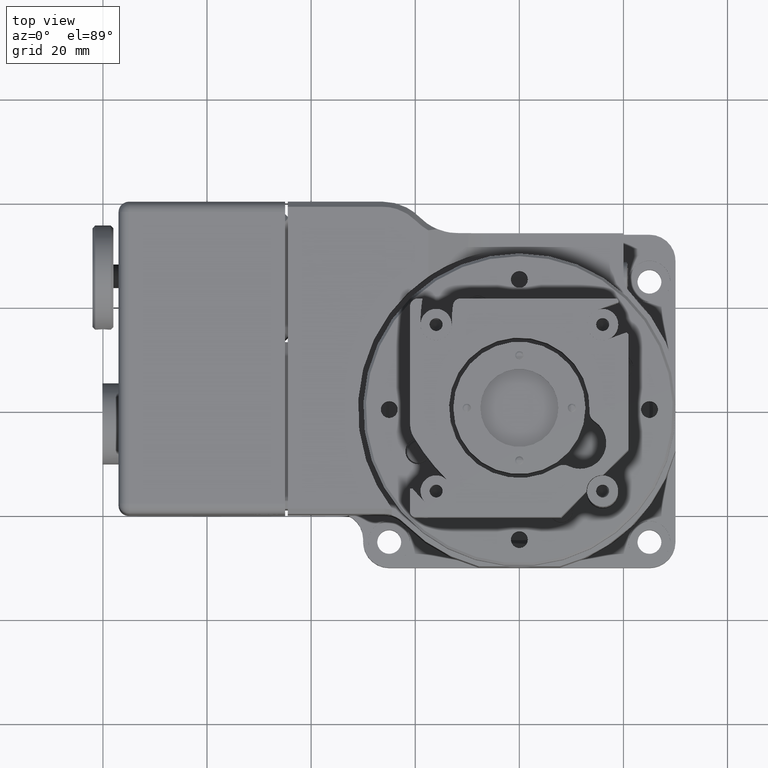
[diagram: clean part render]
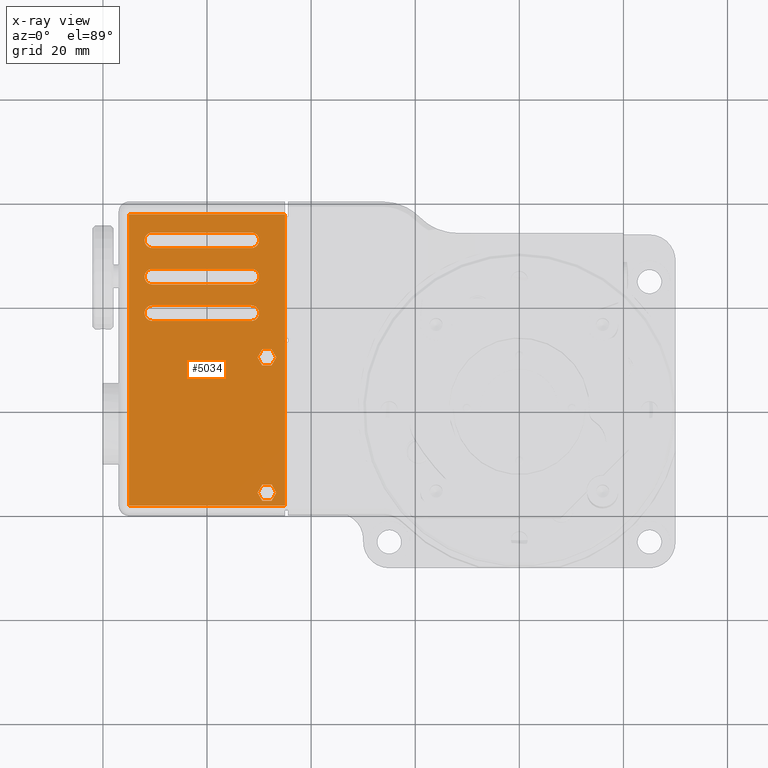
[diagram: x-ray — body ghosted, one internal face saturated and labeled with its STEP entity id]
A machine part, top view, then the same camera in x-ray: the body is ghosted and one INTERNAL B-rep face — a face not visible from any outside direction — is saturated and labeled: STEP entity #5034.
In plain terms, the highlighted planar face has unit normal (-0, 0, 1).
Its self-contained STEP definition (entity closure, byte-faithful):
#184 = CARTESIAN_POINT ( 'NONE',  ( -1.874216814281736365, 0.3523622047244094335, 0.05118110236220535514 ) ) ;
#361 = EDGE_LOOP ( 'NONE', ( #7567, #32311, #22167, #67363 ) ) ;
#484 = CARTESIAN_POINT ( 'NONE',  ( -2.276902887139110376, 0.6889763779527560139, 0.05118110236220545922 ) ) ;
#849 = B_SPLINE_CURVE_WITH_KNOTS ( 'NONE', 3,
 ( #8955, #20896, #53901, #42678 ),
 .UNSPECIFIED., .F., .F.,
 ( 4, 4 ),
 ( 0.000000000000000000, 1.000000000000000000 ),
 .UNSPECIFIED. ) ;
#865 = CARTESIAN_POINT ( 'NONE',  ( -1.975987936328125416, 0.7182092404562008259, 0.05118110236220548004 ) ) ;
#987 = CARTESIAN_POINT ( 'NONE',  ( -2.834642803146336654, 1.291395839605961049, 0.05118110236220527187 ) ) ;
#1157 = EDGE_CURVE ( 'NONE', #5007, #47717, #19038, .T. ) ;
#1255 = EDGE_CURVE ( 'NONE', #58284, #51264, #849, .T. ) ;
#1347 = CARTESIAN_POINT ( 'NONE',  ( -2.790962381973849826, 1.356769282136048638, 0.05118110236220527187 ) ) ;
#1535 = CARTESIAN_POINT ( 'NONE',  ( -2.783429243541466036, 1.082677165354331006, 0.05118110236220531351 ) ) ;
#1963 = EDGE_CURVE ( 'NONE', #54314, #27808, #61242, .T. ) ;
#2179 = B_SPLINE_CURVE_WITH_KNOTS ( 'NONE', 3,
 ( #47493, #36958, #19565, #30790 ),
 .UNSPECIFIED., .F., .F.,
 ( 4, 4 ),
 ( 0.000000000000000000, 1.000000000000000000 ),
 .UNSPECIFIED. ) ;
#2523 = CARTESIAN_POINT ( 'NONE',  ( -2.559055118110236560, -0.7086614173228347191, 0.05118110236220572290 ) ) ;
#2578 = VERTEX_POINT ( 'NONE', #184 ) ;
#3003 = CARTESIAN_POINT ( 'NONE',  ( -2.027559055118110187, 1.082677165354330784, 0.05118110236220519554 ) ) ;
#3082 = CARTESIAN_POINT ( 'NONE',  ( -2.775590551181102317, 0.8070866141732283561, 0.05118110236220519554 ) ) ;
#3169 = ORIENTED_EDGE ( 'NONE', *, *, #55411, .T. ) ;
#3476 = VERTEX_POINT ( 'NONE', #45256 ) ;
#3525 = CARTESIAN_POINT ( 'NONE',  ( -1.921192820436275595, 0.3523622047244108768, 0.05118110236220557718 ) ) ;
#4041 = B_SPLINE_CURVE_WITH_KNOTS ( 'NONE', 3,
 ( #11910, #55771, #61916, #12268 ),
 .UNSPECIFIED., .F., .F.,
 ( 4, 4 ),
 ( 0.000000000000000000, 1.000000000000000000 ),
 .UNSPECIFIED. ) ;
#4099 = CARTESIAN_POINT ( 'NONE',  ( -2.775590551181102317, 0.6889763779527560139, 0.05118110236220519554 ) ) ;
#4647 = EDGE_CURVE ( 'NONE', #52477, #9265, #63409, .T. ) ;
#5007 = VERTEX_POINT ( 'NONE', #45086 ) ;
#5034 = ADVANCED_FACE ( 'NONE', ( #5939, #32757, #16440, #66758, #71136, #54493 ), #66402, .T. ) ;
#5233 = CARTESIAN_POINT ( 'NONE',  ( -2.027559055118110187, 1.358267716535433323, 0.05118110236220519554 ) ) ;
#5559 = CARTESIAN_POINT ( 'NONE',  ( -1.970010544083935944, 0.7326549210754869090, 0.05118110236220549392 ) ) ;
#5738 = CARTESIAN_POINT ( 'NONE',  ( -2.027559055118110187, 0.8070866141732283561, 0.05118110236220527881 ) ) ;
#5939 = FACE_BOUND ( 'NONE', #361, .T. ) ;
#6009 = EDGE_LOOP ( 'NONE', ( #34565, #29058, #15654, #21046 ) ) ;
#6041 = CARTESIAN_POINT ( 'NONE',  ( -2.775590551181102317, 0.8070866141732283561, 0.05118110236220519554 ) ) ;
#6071 = CARTESIAN_POINT ( 'NONE',  ( -2.027559055118110187, 1.240157480314960647, 0.05118110236220519554 ) ) ;
#6239 = CARTESIAN_POINT ( 'NONE',  ( -2.526246719160106124, 0.6889763779527560139, 0.05118110236220543841 ) ) ;
#6269 = CARTESIAN_POINT ( 'NONE',  ( -1.968501070862828106, 0.7402147372439948914, 0.05118110236220548004 ) ) ;
#6387 = B_SPLINE_CURVE_WITH_KNOTS ( 'NONE', 3,
 ( #61940, #38769, #22445, #39116, #44595, #66618, #46388, #51442, #30044, #58312, #52153, #7586, #57595, #29679, #68049, #52869, #8638, #40925 ),
 .UNSPECIFIED., .F., .F.,
 ( 4, 2, 2, 2, 2, 2, 2, 2, 4 ),
 ( 0.000000000000000000, 0.1250000000000000000, 0.2500000000000000000, 0.3750000000000000000, 0.5000000000000000000, 0.6250000000000000000, 0.7500000000000000000, 0.8750000000000000000, 1.000000000000000000 ),
 .UNSPECIFIED. ) ;
#6388 = CARTESIAN_POINT ( 'NONE',  ( -2.833144358160782694, 1.283833829785347103, 0.05118110236220527187 ) ) ;
#6577 = CARTESIAN_POINT ( 'NONE',  ( -2.790962381973849826, 1.081178730954946321, 0.05118110236220532044 ) ) ;
#6626 = CARTESIAN_POINT ( 'NONE',  ( -1.980271470800203160, 0.7842645140453091690, 0.05118110236220547310 ) ) ;
#6637 = CARTESIAN_POINT ( 'NONE',  ( -1.862472812743103834, -0.5695538057742781657, 0.05118110236220578535 ) ) ;
#6754 = CARTESIAN_POINT ( 'NONE',  ( -2.833139062215403126, 1.314589173412535450, 0.05118110236220527187 ) ) ;
#6792 = CARTESIAN_POINT ( 'NONE',  ( -1.874216814281732590, -0.6712598425196850682, 0.05118110236220575066 ) ) ;
#6996 = EDGE_CURVE ( 'NONE', #50062, #5007, #6387, .T. ) ;
#7355 = CARTESIAN_POINT ( 'NONE',  ( -2.276902887139111709, 1.082677165354330784, 0.05118110236220536902 ) ) ;
#7567 = ORIENTED_EDGE ( 'NONE', *, *, #6996, .T. ) ;
#7586 = CARTESIAN_POINT ( 'NONE',  ( -1.975987936328125416, 0.9937997916373035867, 0.05118110236220543841 ) ) ;
#7637 = CARTESIAN_POINT ( 'NONE',  ( -2.827156374025597607, 0.9938019852896410322, 0.05118110236220534126 ) ) ;
#8164 = CARTESIAN_POINT ( 'NONE',  ( -1.838984809665830999, -0.6102362204724409711, 0.05118110236220590331 ) ) ;
#8608 = VERTEX_POINT ( 'NONE', #63247 ) ;
#8638 = CARTESIAN_POINT ( 'NONE',  ( -2.019720362757804644, 0.9645669291338585527, 0.05118110236220543841 ) ) ;
#8824 = CARTESIAN_POINT ( 'NONE',  ( -1.968168826590812825, 0.4337270341207382640, 0.05118110236220556331 ) ) ;
#8912 = CARTESIAN_POINT ( 'NONE',  ( -1.874216814281736365, 0.3523622047244094335, 0.05118110236220535514 ) ) ;
#8955 = CARTESIAN_POINT ( 'NONE',  ( -1.944680823513539547, 0.3523622047244094335, 0.05118110236220472370 ) ) ;
#9040 = VERTEX_POINT ( 'NONE', #25460 ) ;
#9265 = VERTEX_POINT ( 'NONE', #47897 ) ;
#9745 = EDGE_CURVE ( 'NONE', #51264, #36087, #24975, .T. ) ;
#9918 = B_SPLINE_CURVE_WITH_KNOTS ( 'NONE', 3,
 ( #51355, #50987, #29228, #45222, #61136, #66894, #61490, #11490, #16930, #11845, #33603, #27784, #56798, #39033, #33967, #61853, #23424, #6071 ),
 .UNSPECIFIED., .F., .F.,
 ( 4, 2, 2, 2, 2, 2, 2, 2, 4 ),
 ( 0.000000000000000000, 0.1250000000000000000, 0.2500000000000000000, 0.3750000000000000000, 0.5000000000000000000, 0.6250000000000000000, 0.7500000000000000000, 0.8750000000000000000, 1.000000000000000000 ),
 .UNSPECIFIED. ) ;
#9931 = VERTEX_POINT ( 'NONE', #63098 ) ;
#10966 = CARTESIAN_POINT ( 'NONE',  ( -1.997736799511320438, 0.7996026148530076538, 0.05118110236220546616 ) ) ;
#11075 = CARTESIAN_POINT ( 'NONE',  ( -1.874216814281736365, 0.4744094488188976277, 0.05118110236220550779 ) ) ;
#11080 = CARTESIAN_POINT ( 'NONE',  ( -2.811819515822184368, 1.251929067448343202, 0.05118110236220527881 ) ) ;
#11320 = CARTESIAN_POINT ( 'NONE',  ( -1.980275524141429599, 0.7118025314218476840, 0.05118110236220549392 ) ) ;
#11490 = CARTESIAN_POINT ( 'NONE',  ( -1.970005248138487985, 1.314591367065168104, 0.05118110236220536902 ) ) ;
#11625 = CARTESIAN_POINT ( 'NONE',  ( -2.833144358160782694, 1.008243278604244786, 0.05118110236220531351 ) ) ;
#11845 = CARTESIAN_POINT ( 'NONE',  ( -1.968501070862828106, 1.291395839606199747, 0.05118110236220538289 ) ) ;
#11910 = CARTESIAN_POINT ( 'NONE',  ( -1.874216814281732590, -0.6712598425196850682, 0.05118110236220575066 ) ) ;
#12184 = EDGE_CURVE ( 'NONE', #67544, #16506, #57563, .T. ) ;
#12268 = CARTESIAN_POINT ( 'NONE',  ( -1.944680823513539547, -0.6712598425196850682, 0.05118110236220590331 ) ) ;
#13056 = CARTESIAN_POINT ( 'NONE',  ( -2.834648535436341543, 1.031438806063331048, 0.05118110236220532738 ) ) ;
#13717 = CARTESIAN_POINT ( 'NONE',  ( -2.165354330708661124, -0.7086614173228347191, 0.05118110236220576453 ) ) ;
#13976 = CARTESIAN_POINT ( 'NONE',  ( -2.276902887139111709, 1.240157480314960647, 0.05118110236220534126 ) ) ;
#14164 = EDGE_CURVE ( 'NONE', #34531, #15194, #51297, .T. ) ;
#14630 = CARTESIAN_POINT ( 'NONE',  ( -1.956424825052178740, 0.4540682414698195557, 0.05118110236220554943 ) ) ;
#14805 = CARTESIAN_POINT ( 'NONE',  ( -2.952755905511811108, 0.02624671916010483039, 0.05118110236220551473 ) ) ;
#14951 = CARTESIAN_POINT ( 'NONE',  ( -2.833144358160782694, 0.7326527274231420250, 0.05118110236220538983 ) ) ;
#14965 = CARTESIAN_POINT ( 'NONE',  ( -2.952755905511811108, 1.496062992125984259, 0.05118110236220472370 ) ) ;
#15124 = EDGE_CURVE ( 'NONE', #21518, #9040, #49442, .T. ) ;
#15194 = VERTEX_POINT ( 'NONE', #6792 ) ;
#15299 = CARTESIAN_POINT ( 'NONE',  ( -2.783429243541466036, 0.8070866141732283561, 0.05118110236220538289 ) ) ;
#15436 = AXIS2_PLACEMENT_3D ( 'NONE', #38549, #54870, #17522 ) ;
#15491 = CARTESIAN_POINT ( 'NONE',  ( -2.526246719160108789, 0.8070866141732283561, 0.05118110236220541759 ) ) ;
#15654 = ORIENTED_EDGE ( 'NONE', *, *, #43971, .T. ) ;
#15810 = EDGE_LOOP ( 'NONE', ( #16647, #64815, #40406, #53003 ) ) ;
#15848 = EDGE_CURVE ( 'NONE', #44402, #3476, #70942, .T. ) ;
#15872 = CARTESIAN_POINT ( 'NONE',  ( -2.952755905511811108, 0.7611548556430446366, 0.05118110236220536208 ) ) ;
#16219 = CARTESIAN_POINT ( 'NONE',  ( -1.874216814281736365, -0.5492125984251968740, 0.05118110236220550779 ) ) ;
#16440 = FACE_BOUND ( 'NONE', #31687, .T. ) ;
#16506 = VERTEX_POINT ( 'NONE', #49829 ) ;
#16647 = ORIENTED_EDGE ( 'NONE', *, *, #50435, .T. ) ;
#16779 = CARTESIAN_POINT ( 'NONE',  ( -1.997732055316506106, 0.6964685499496803267, 0.05118110236220550086 ) ) ;
#16930 = CARTESIAN_POINT ( 'NONE',  ( -1.968506803152920481, 1.307029357244194445, 0.05118110236220536902 ) ) ;
#17136 = CARTESIAN_POINT ( 'NONE',  ( -1.991330090476984171, 0.7953150270397224553, 0.05118110236220548004 ) ) ;
#17255 = CARTESIAN_POINT ( 'NONE',  ( -2.775590551181102317, 1.240157480314960647, 0.05118110236220519554 ) ) ;
#17522 = DIRECTION ( 'NONE',  ( 0.000000000000000000, -1.000000000000000000, 2.081668171172169499E-16 ) ) ;
#17612 = CARTESIAN_POINT ( 'NONE',  ( -2.811823569163413250, 1.346500182743088692, 0.05118110236220525799 ) ) ;
#17860 = B_SPLINE_CURVE_WITH_KNOTS ( 'NONE', 3,
 ( #52148, #2523, #13717, #62992 ),
 .UNSPECIFIED., .F., .F.,
 ( 4, 4 ),
 ( 0.000000000000000000, 1.000000000000000000 ),
 .UNSPECIFIED. ) ;
#18167 = CARTESIAN_POINT ( 'NONE',  ( -2.027559055118110187, 0.6889763779527560139, 0.05118110236220543147 ) ) ;
#18233 = CARTESIAN_POINT ( 'NONE',  ( -2.952755905511811108, -0.7086614173228346081, 0.05118110236220558412 ) ) ;
#18295 = B_SPLINE_CURVE_WITH_KNOTS ( 'NONE', 3,
 ( #71214, #66118, #61434, #11075 ),
 .UNSPECIFIED., .F., .F.,
 ( 4, 4 ),
 ( 0.000000000000000000, 1.000000000000000000 ),
 .UNSPECIFIED. ) ;
#18430 = B_SPLINE_CURVE_WITH_KNOTS ( 'NONE', 3,
 ( #38558, #26941, #71500, #5233 ),
 .UNSPECIFIED., .F., .F.,
 ( 4, 4 ),
 ( 0.000000000000000000, 1.000000000000000000 ),
 .UNSPECIFIED. ) ;
#18513 = CARTESIAN_POINT ( 'NONE',  ( -2.811819515822202131, 0.9763385162672821860, 0.05118110236220534126 ) ) ;
#18574 = CARTESIAN_POINT ( 'NONE',  ( -1.850728811204469304, -0.5898950131233594574, 0.05118110236220577147 ) ) ;
#19038 = B_SPLINE_CURVE_WITH_KNOTS ( 'NONE', 3,
 ( #59689, #31425, #69806, #69445 ),
 .UNSPECIFIED., .F., .F.,
 ( 4, 4 ),
 ( 0.000000000000000000, 1.000000000000000000 ),
 .UNSPECIFIED. ) ;
#19491 = ORIENTED_EDGE ( 'NONE', *, *, #54040, .T. ) ;
#19565 = CARTESIAN_POINT ( 'NONE',  ( -1.862472812743104500, 0.3727034120734911138, 0.05118110236220558412 ) ) ;
#19660 = CARTESIAN_POINT ( 'NONE',  ( -2.811823569163413250, 0.7953190803808842801, 0.05118110236220538289 ) ) ;
#19782 = CARTESIAN_POINT ( 'NONE',  ( -1.944680823513539547, -0.5492125984251968740, 0.05118110236220535514 ) ) ;
#19906 = ORIENTED_EDGE ( 'NONE', *, *, #12184, .T. ) ;
#20195 = CARTESIAN_POINT ( 'NONE',  ( -1.956424825052177185, -0.6509186351706036655, 0.05118110236220578535 ) ) ;
#20225 = CARTESIAN_POINT ( 'NONE',  ( -1.944680823513539547, 0.3523622047244094335, 0.05118110236220472370 ) ) ;
#20598 = EDGE_CURVE ( 'NONE', #3476, #2578, #2179, .T. ) ;
#20685 = CARTESIAN_POINT ( 'NONE',  ( -1.771653543307086576, 1.496062992125984259, 0.05118110236220519554 ) ) ;
#20896 = CARTESIAN_POINT ( 'NONE',  ( -1.956424825052178962, 0.3727034120734911693, 0.05118110236220557024 ) ) ;
#21046 = ORIENTED_EDGE ( 'NONE', *, *, #15124, .F. ) ;
#21077 = CARTESIAN_POINT ( 'NONE',  ( -2.027559055118110187, 1.082677165354330784, 0.05118110236220519554 ) ) ;
#21281 = EDGE_CURVE ( 'NONE', #9265, #22499, #18430, .T. ) ;
#21518 = VERTEX_POINT ( 'NONE', #63132 ) ;
#21570 = ORIENTED_EDGE ( 'NONE', *, *, #1963, .T. ) ;
#21653 = EDGE_CURVE ( 'NONE', #47717, #8608, #26084, .T. ) ;
#22167 = ORIENTED_EDGE ( 'NONE', *, *, #21653, .T. ) ;
#22200 = CARTESIAN_POINT ( 'NONE',  ( -1.970005248138487985, 0.7634102647029632482, 0.05118110236220548004 ) ) ;
#22388 = VERTEX_POINT ( 'NONE', #43228 ) ;
#22445 = CARTESIAN_POINT ( 'NONE',  ( -2.012182480130606965, 1.081170558278252258, 0.05118110236220541759 ) ) ;
#22499 = VERTEX_POINT ( 'NONE', #45371 ) ;
#22919 = CARTESIAN_POINT ( 'NONE',  ( -2.019720362757804644, 0.6889763779527560139, 0.05118110236220549392 ) ) ;
#23033 = CARTESIAN_POINT ( 'NONE',  ( -2.834648535436341543, 1.307029357244433143, 0.05118110236220527187 ) ) ;
#23261 = CARTESIAN_POINT ( 'NONE',  ( -2.012182480130606965, 0.8055800070971498306, 0.05118110236220547310 ) ) ;
#23424 = CARTESIAN_POINT ( 'NONE',  ( -2.019720362757804644, 1.240157480314960869, 0.05118110236220536902 ) ) ;
#23904 = CARTESIAN_POINT ( 'NONE',  ( -1.968168826590811049, -0.6305774278215222628, 0.05118110236220577147 ) ) ;
#23918 = CARTESIAN_POINT ( 'NONE',  ( -2.805412806787949798, 0.9720509284540792549, 0.05118110236220532738 ) ) ;
#24975 = B_SPLINE_CURVE_WITH_KNOTS ( 'NONE', 3,
 ( #58498, #8824, #14630, #36738 ),
 .UNSPECIFIED., .F., .F.,
 ( 4, 4 ),
 ( 0.000000000000000000, 1.000000000000000000 ),
 .UNSPECIFIED. ) ;
#25460 = CARTESIAN_POINT ( 'NONE',  ( -1.771653543307086576, -0.7086614173228346081, 0.05118110236220558412 ) ) ;
#25986 = CARTESIAN_POINT ( 'NONE',  ( -1.897704817359007867, -0.5492125984251968740, 0.05118110236220577147 ) ) ;
#26084 = B_SPLINE_CURVE_WITH_KNOTS ( 'NONE', 3,
 ( #45720, #45366, #56219, #23918, #18513, #46083, #7637, #11625, #68099, #13056, #50433, #39532, #39906, #66678, #44653, #6577, #1535, #33741 ),
 .UNSPECIFIED., .F., .F.,
 ( 4, 2, 2, 2, 2, 2, 2, 2, 4 ),
 ( 0.000000000000000000, 0.1250000000000000000, 0.2500000000000000000, 0.3750000000000000000, 0.5000000000000000000, 0.6250000000000000000, 0.7500000000000000000, 0.8750000000000000000, 1.000000000000000000 ),
 .UNSPECIFIED. ) ;
#26133 = CARTESIAN_POINT ( 'NONE',  ( -2.833139062215403126, 0.7634080710503302614, 0.05118110236220538289 ) ) ;
#26687 = CARTESIAN_POINT ( 'NONE',  ( -1.771653543307086576, 1.496062992125984259, 0.05118110236220519554 ) ) ;
#26941 = CARTESIAN_POINT ( 'NONE',  ( -2.526246719160108789, 1.358267716535433323, 0.05118110236220529269 ) ) ;
#27375 = CARTESIAN_POINT ( 'NONE',  ( -2.822878135499069074, 1.262979580443007066, 0.05118110236220528575 ) ) ;
#27661 = B_SPLINE_CURVE_WITH_KNOTS ( 'NONE', 3,
 ( #8912, #31028, #3525, #48084 ),
 .UNSPECIFIED., .F., .F.,
 ( 4, 4 ),
 ( 0.000000000000000000, 1.000000000000000000 ),
 .UNSPECIFIED. ) ;
#27733 = ORIENTED_EDGE ( 'NONE', *, *, #36085, .T. ) ;
#27784 = CARTESIAN_POINT ( 'NONE',  ( -1.975987936328125416, 1.269390342818406126, 0.05118110236220538289 ) ) ;
#27808 = VERTEX_POINT ( 'NONE', #3082 ) ;
#28117 = CARTESIAN_POINT ( 'NONE',  ( -2.276902887139111709, 0.8070866141732283561, 0.05118110236220543147 ) ) ;
#28342 = CARTESIAN_POINT ( 'NONE',  ( -1.991326037135758842, 0.7007439117451003119, 0.05118110236220548004 ) ) ;
#28444 = CARTESIAN_POINT ( 'NONE',  ( -2.775590551181102317, 1.240157480314960647, 0.05118110236220519554 ) ) ;
#28810 = EDGE_CURVE ( 'NONE', #27808, #51283, #60690, .T. ) ;
#28829 = CARTESIAN_POINT ( 'NONE',  ( -2.805417550982665986, 1.350775544538510342, 0.05118110236220525799 ) ) ;
#28979 = ORIENTED_EDGE ( 'NONE', *, *, #15848, .T. ) ;
#29058 = ORIENTED_EDGE ( 'NONE', *, *, #65694, .T. ) ;
#29228 = CARTESIAN_POINT ( 'NONE',  ( -2.012182480130691342, 1.356761109459413417, 0.05118110236220536208 ) ) ;
#29552 = CARTESIAN_POINT ( 'NONE',  ( -2.775590551181102317, 1.358267716535433323, 0.05118110236220519554 ) ) ;
#29621 = VERTEX_POINT ( 'NONE', #14965 ) ;
#29679 = CARTESIAN_POINT ( 'NONE',  ( -1.991326037135758842, 0.9763344629262031837, 0.05118110236220543841 ) ) ;
#30044 = CARTESIAN_POINT ( 'NONE',  ( -1.968506803152920481, 1.031438806063092128, 0.05118110236220543147 ) ) ;
#30790 = CARTESIAN_POINT ( 'NONE',  ( -1.874216814281736365, 0.3523622047244094335, 0.05118110236220535514 ) ) ;
#31028 = CARTESIAN_POINT ( 'NONE',  ( -1.897704817359007867, 0.3523622047244108768, 0.05118110236220558412 ) ) ;
#31252 = CARTESIAN_POINT ( 'NONE',  ( -2.783414236668733999, 0.6889763779527561249, 0.05118110236220539677 ) ) ;
#31392 = VERTEX_POINT ( 'NONE', #57427 ) ;
#31425 = CARTESIAN_POINT ( 'NONE',  ( -2.276902887139111709, 0.9645669291338583307, 0.05118110236220539677 ) ) ;
#31687 = EDGE_LOOP ( 'NONE', ( #43922, #33542, #21570, #33172 ) ) ;
#31792 = B_SPLINE_CURVE_WITH_KNOTS ( 'NONE', 3,
 ( #39598, #6637, #18574, #45779 ),
 .UNSPECIFIED., .F., .F.,
 ( 4, 4 ),
 ( 0.000000000000000000, 1.000000000000000000 ),
 .UNSPECIFIED. ) ;
#31961 = CARTESIAN_POINT ( 'NONE',  ( -2.805412806787949798, 0.6964603772729777154, 0.05118110236220539677 ) ) ;
#32311 = ORIENTED_EDGE ( 'NONE', *, *, #1157, .T. ) ;
#32646 = CARTESIAN_POINT ( 'NONE',  ( -1.944680823513539547, -0.6712598425196850682, 0.05118110236220590331 ) ) ;
#32757 = FACE_BOUND ( 'NONE', #15810, .T. ) ;
#32923 = ORIENTED_EDGE ( 'NONE', *, *, #9745, .T. ) ;
#33008 = EDGE_CURVE ( 'NONE', #36087, #44402, #18295, .T. ) ;
#33080 = VERTEX_POINT ( 'NONE', #37923 ) ;
#33082 = CARTESIAN_POINT ( 'NONE',  ( -1.975993232273573597, 0.7778515580173274158, 0.05118110236220548004 ) ) ;
#33172 = ORIENTED_EDGE ( 'NONE', *, *, #28810, .T. ) ;
#33542 = ORIENTED_EDGE ( 'NONE', *, *, #43578, .T. ) ;
#33603 = CARTESIAN_POINT ( 'NONE',  ( -1.970010544083935944, 1.283836023437692209, 0.05118110236220536902 ) ) ;
#33741 = CARTESIAN_POINT ( 'NONE',  ( -2.775590551181102317, 1.082677165354330784, 0.05118110236220519554 ) ) ;
#33786 = ORIENTED_EDGE ( 'NONE', *, *, #20598, .T. ) ;
#33967 = CARTESIAN_POINT ( 'NONE',  ( -1.997732055316506106, 1.247649652311886515, 0.05118110236220538289 ) ) ;
#34531 = VERTEX_POINT ( 'NONE', #8164 ) ;
#34565 = ORIENTED_EDGE ( 'NONE', *, *, #46196, .T. ) ;
#34725 = VERTEX_POINT ( 'NONE', #18233 ) ;
#34893 = CARTESIAN_POINT ( 'NONE',  ( -2.526246719160108789, 1.082677165354330784, 0.05118110236220535514 ) ) ;
#35159 = ORIENTED_EDGE ( 'NONE', *, *, #63042, .T. ) ;
#35981 = CARTESIAN_POINT ( 'NONE',  ( -2.827156374025597607, 0.7182114341085376052, 0.05118110236220539677 ) ) ;
#36085 = EDGE_CURVE ( 'NONE', #15194, #67544, #4041, .T. ) ;
#36087 = VERTEX_POINT ( 'NONE', #55416 ) ;
#36149 = ORIENTED_EDGE ( 'NONE', *, *, #33008, .T. ) ;
#36738 = CARTESIAN_POINT ( 'NONE',  ( -1.944680823513539547, 0.4744094488188976277, 0.05118110236220527881 ) ) ;
#36958 = CARTESIAN_POINT ( 'NONE',  ( -1.850728811204470192, 0.3930446194225727941, 0.05118110236220557718 ) ) ;
#37049 = CARTESIAN_POINT ( 'NONE',  ( -2.834648535436341543, 0.7558482548822278435, 0.05118110236220538289 ) ) ;
#37923 = CARTESIAN_POINT ( 'NONE',  ( -2.027559055118110187, 0.6889763779527560139, 0.05118110236220543147 ) ) ;
#38549 = CARTESIAN_POINT ( 'NONE',  ( -2.401574803149606474, 0.3937007874015748254, 0.05118110236220550779 ) ) ;
#38558 = CARTESIAN_POINT ( 'NONE',  ( -2.775590551181102317, 1.358267716535433323, 0.05118110236220519554 ) ) ;
#38769 = CARTESIAN_POINT ( 'NONE',  ( -2.019735369630437649, 1.082677165354330784, 0.05118110236220539677 ) ) ;
#38877 = CARTESIAN_POINT ( 'NONE',  ( -2.012187224325420409, 0.6904748123521410319, 0.05118110236220550779 ) ) ;
#39033 = CARTESIAN_POINT ( 'NONE',  ( -1.991326037135758842, 1.251925014107304612, 0.05118110236220538289 ) ) ;
#39116 = CARTESIAN_POINT ( 'NONE',  ( -1.997736799511320438, 1.075193166034110082, 0.05118110236220541759 ) ) ;
#39232 = CARTESIAN_POINT ( 'NONE',  ( -1.968506803152920481, 0.7558482548819891456, 0.05118110236220548004 ) ) ;
#39346 = CARTESIAN_POINT ( 'NONE',  ( -2.790967126168481638, 1.241664087390982329, 0.05118110236220528575 ) ) ;
#39532 = CARTESIAN_POINT ( 'NONE',  ( -2.827161669970975399, 1.053444302851054948, 0.05118110236220531351 ) ) ;
#39598 = CARTESIAN_POINT ( 'NONE',  ( -1.874216814281736365, -0.5492125984251968740, 0.05118110236220550779 ) ) ;
#39712 = CARTESIAN_POINT ( 'NONE',  ( -2.827161669970975399, 1.329034854032157265, 0.05118110236220525799 ) ) ;
#39906 = CARTESIAN_POINT ( 'NONE',  ( -2.822874082157840636, 1.059851011885241556, 0.05118110236220532738 ) ) ;
#40406 = ORIENTED_EDGE ( 'NONE', *, *, #4647, .T. ) ;
#40925 = CARTESIAN_POINT ( 'NONE',  ( -2.027559055118110187, 0.9645669291338583307, 0.05118110236220519554 ) ) ;
#41283 = EDGE_CURVE ( 'NONE', #51283, #33080, #51826, .T. ) ;
#41370 = CARTESIAN_POINT ( 'NONE',  ( -2.559055118110236560, 1.496062992125984259, 0.05118110236220525799 ) ) ;
#41778 = CARTESIAN_POINT ( 'NONE',  ( -2.775590551181102317, 0.8070866141732283561, 0.05118110236220519554 ) ) ;
#42146 = CARTESIAN_POINT ( 'NONE',  ( -2.790962381973849826, 0.8055881797738440042, 0.05118110236220536902 ) ) ;
#42346 = CARTESIAN_POINT ( 'NONE',  ( -1.921192820436275595, -0.5492125984251968740, 0.05118110236220576453 ) ) ;
#42499 = CARTESIAN_POINT ( 'NONE',  ( -2.790967126168565127, 0.6904829850288362048, 0.05118110236220540371 ) ) ;
#42548 = CARTESIAN_POINT ( 'NONE',  ( -2.775590551181102317, 0.6889763779527560139, 0.05118110236220519554 ) ) ;
#42678 = CARTESIAN_POINT ( 'NONE',  ( -1.979912828129441138, 0.4133858267716535861, 0.05118110236220472370 ) ) ;
#42768 = CARTESIAN_POINT ( 'NONE',  ( -1.850728811204472413, 0.4337270341207372093, 0.05118110236220557024 ) ) ;
#42860 = CARTESIAN_POINT ( 'NONE',  ( -2.822874082157840636, 0.7842604607041376852, 0.05118110236220536902 ) ) ;
#42980 = CARTESIAN_POINT ( 'NONE',  ( -1.956424825052177185, -0.5695538057742781657, 0.05118110236220576453 ) ) ;
#43066 = CARTESIAN_POINT ( 'NONE',  ( -2.952755905511811108, -0.7086614173228346081, 0.05118110236220558412 ) ) ;
#43228 = CARTESIAN_POINT ( 'NONE',  ( -1.944680823513539547, -0.5492125984251968740, 0.05118110236220535514 ) ) ;
#43396 = ORIENTED_EDGE ( 'NONE', *, *, #14164, .T. ) ;
#43578 = EDGE_CURVE ( 'NONE', #33080, #54314, #52385, .T. ) ;
#43733 = CARTESIAN_POINT ( 'NONE',  ( -2.783429243541466036, 1.358267716535433545, 0.05118110236220525799 ) ) ;
#43748 = CARTESIAN_POINT ( 'NONE',  ( -2.027559055118110187, 0.8070866141732283561, 0.05118110236220527881 ) ) ;
#43795 = CARTESIAN_POINT ( 'NONE',  ( -1.979912828129441138, 0.4133858267716535861, 0.05118110236220472370 ) ) ;
#43922 = ORIENTED_EDGE ( 'NONE', *, *, #41283, .T. ) ;
#43971 = EDGE_CURVE ( 'NONE', #34725, #9040, #17860, .T. ) ;
#44096 = CARTESIAN_POINT ( 'NONE',  ( -2.805412806788033730, 1.247641479635241968, 0.05118110236220527881 ) ) ;
#44402 = VERTEX_POINT ( 'NONE', #63062 ) ;
#44595 = CARTESIAN_POINT ( 'NONE',  ( -1.991330090476966852, 1.070905578220807008, 0.05118110236220542453 ) ) ;
#44653 = CARTESIAN_POINT ( 'NONE',  ( -2.805417550982665986, 1.075184993357408247, 0.05118110236220532044 ) ) ;
#44703 = CARTESIAN_POINT ( 'NONE',  ( -2.027559055118110187, 0.8070866141732283561, 0.05118110236220527881 ) ) ;
#44841 = CARTESIAN_POINT ( 'NONE',  ( -1.838984809665830999, -0.6102362204724409711, 0.05118110236220590331 ) ) ;
#45056 = CARTESIAN_POINT ( 'NONE',  ( -2.027559055118110187, 0.6889763779527560139, 0.05118110236220543147 ) ) ;
#45086 = CARTESIAN_POINT ( 'NONE',  ( -2.027559055118110187, 0.9645669291338583307, 0.05118110236220519554 ) ) ;
#45222 = CARTESIAN_POINT ( 'NONE',  ( -1.997736799511235839, 1.350783717215153779, 0.05118110236220535514 ) ) ;
#45256 = CARTESIAN_POINT ( 'NONE',  ( -1.838984809665834774, 0.4133858267716535861, 0.05118110236220535514 ) ) ;
#45366 = CARTESIAN_POINT ( 'NONE',  ( -2.783414236668733999, 0.9645669291338582196, 0.05118110236220534126 ) ) ;
#45371 = CARTESIAN_POINT ( 'NONE',  ( -2.027559055118110187, 1.358267716535433323, 0.05118110236220519554 ) ) ;
#45720 = CARTESIAN_POINT ( 'NONE',  ( -2.775590551181102317, 0.9645669291338583307, 0.05118110236220519554 ) ) ;
#45779 = CARTESIAN_POINT ( 'NONE',  ( -1.838984809665830999, -0.6102362204724409711, 0.05118110236220590331 ) ) ;
#46083 = CARTESIAN_POINT ( 'NONE',  ( -2.822878135499051755, 0.9873890292618630049, 0.05118110236220534126 ) ) ;
#46196 = EDGE_CURVE ( 'NONE', #21518, #29621, #48671, .T. ) ;
#46388 = CARTESIAN_POINT ( 'NONE',  ( -1.975993232273573597, 1.053442109198405863, 0.05118110236220542453 ) ) ;
#47493 = CARTESIAN_POINT ( 'NONE',  ( -1.838984809665834774, 0.4133858267716535861, 0.05118110236220535514 ) ) ;
#47717 = VERTEX_POINT ( 'NONE', #57461 ) ;
#47772 = B_SPLINE_CURVE_WITH_KNOTS ( 'NONE', 3,
 ( #69030, #58217, #42980, #19782 ),
 .UNSPECIFIED., .F., .F.,
 ( 4, 4 ),
 ( 0.000000000000000000, 1.000000000000000000 ),
 .UNSPECIFIED. ) ;
#47797 = CARTESIAN_POINT ( 'NONE',  ( -1.944680823513539547, -0.5492125984251968740, 0.05118110236220535514 ) ) ;
#47861 = CARTESIAN_POINT ( 'NONE',  ( -1.838984809665834774, 0.4133858267716535861, 0.05118110236220535514 ) ) ;
#47897 = CARTESIAN_POINT ( 'NONE',  ( -2.775590551181102317, 1.358267716535433323, 0.05118110236220519554 ) ) ;
#48084 = CARTESIAN_POINT ( 'NONE',  ( -1.944680823513539547, 0.3523622047244094335, 0.05118110236220472370 ) ) ;
#48511 = CARTESIAN_POINT ( 'NONE',  ( -1.771653543307083245, 0.02624671916010483039, 0.05118110236220520248 ) ) ;
#48671 = B_SPLINE_CURVE_WITH_KNOTS ( 'NONE', 3,
 ( #20685, #59113, #41370, #69947 ),
 .UNSPECIFIED., .F., .F.,
 ( 4, 4 ),
 ( 0.000000000000000000, 1.000000000000000000 ),
 .UNSPECIFIED. ) ;
#48846 = CARTESIAN_POINT ( 'NONE',  ( -1.771653543307086576, -0.7086614173228346081, 0.05118110236220558412 ) ) ;
#49442 = B_SPLINE_CURVE_WITH_KNOTS ( 'NONE', 3,
 ( #26687, #71251, #48511, #48846 ),
 .UNSPECIFIED., .F., .F.,
 ( 4, 4 ),
 ( 0.000000000000000000, 1.000000000000000000 ),
 .UNSPECIFIED. ) ;
#49546 = CARTESIAN_POINT ( 'NONE',  ( -1.862472812743106276, 0.4540682414698183900, 0.05118110236220557024 ) ) ;
#49829 = CARTESIAN_POINT ( 'NONE',  ( -1.979912828129441138, -0.6102362204724409711, 0.05118110236220550779 ) ) ;
#50062 = VERTEX_POINT ( 'NONE', #21077 ) ;
#50433 = CARTESIAN_POINT ( 'NONE',  ( -2.833139062215403126, 1.038998622231432911, 0.05118110236220532738 ) ) ;
#50435 = EDGE_CURVE ( 'NONE', #22499, #9931, #9918, .T. ) ;
#50987 = CARTESIAN_POINT ( 'NONE',  ( -2.019735369630378141, 1.358267716535432879, 0.05118110236220536208 ) ) ;
#51118 = CARTESIAN_POINT ( 'NONE',  ( -1.979912828129441138, -0.6102362204724409711, 0.05118110236220550779 ) ) ;
#51264 = VERTEX_POINT ( 'NONE', #43795 ) ;
#51283 = VERTEX_POINT ( 'NONE', #5738 ) ;
#51297 = B_SPLINE_CURVE_WITH_KNOTS ( 'NONE', 3,
 ( #44841, #60399, #66872, #61466 ),
 .UNSPECIFIED., .F., .F.,
 ( 4, 4 ),
 ( 0.000000000000000000, 1.000000000000000000 ),
 .UNSPECIFIED. ) ;
#51355 = CARTESIAN_POINT ( 'NONE',  ( -2.027559055118110187, 1.358267716535433323, 0.05118110236220519554 ) ) ;
#51442 = CARTESIAN_POINT ( 'NONE',  ( -1.970005248138487985, 1.039000815884090656, 0.05118110236220541759 ) ) ;
#51700 = CARTESIAN_POINT ( 'NONE',  ( -2.027559055118110187, 1.240157480314960647, 0.05118110236220519554 ) ) ;
#51826 = B_SPLINE_CURVE_WITH_KNOTS ( 'NONE', 3,
 ( #44703, #54837, #23261, #10966, #17136, #6626, #33082, #22200, #39232, #6269, #5559, #865, #11320, #28342, #16779, #38877, #22919, #45056 ),
 .UNSPECIFIED., .F., .F.,
 ( 4, 2, 2, 2, 2, 2, 2, 2, 4 ),
 ( 0.000000000000000000, 0.1250000000000000000, 0.2500000000000000000, 0.3750000000000000000, 0.5000000000000000000, 0.6250000000000000000, 0.7500000000000000000, 0.8750000000000000000, 1.000000000000000000 ),
 .UNSPECIFIED. ) ;
#52148 = CARTESIAN_POINT ( 'NONE',  ( -2.952755905511811108, -0.7086614173228346081, 0.05118110236220558412 ) ) ;
#52153 = CARTESIAN_POINT ( 'NONE',  ( -1.970010544083935944, 1.008245472256589892, 0.05118110236220543841 ) ) ;
#52385 = B_SPLINE_CURVE_WITH_KNOTS ( 'NONE', 3,
 ( #18167, #484, #6239, #66345 ),
 .UNSPECIFIED., .F., .F.,
 ( 4, 4 ),
 ( 0.000000000000000000, 1.000000000000000000 ),
 .UNSPECIFIED. ) ;
#52477 = VERTEX_POINT ( 'NONE', #28444 ) ;
#52663 = CARTESIAN_POINT ( 'NONE',  ( -2.811819515822202131, 0.7007479650861797582, 0.05118110236220539677 ) ) ;
#52869 = CARTESIAN_POINT ( 'NONE',  ( -2.012187224325420409, 0.9660653635332431266, 0.05118110236220543841 ) ) ;
#53003 = ORIENTED_EDGE ( 'NONE', *, *, #21281, .T. ) ;
#53901 = CARTESIAN_POINT ( 'NONE',  ( -1.968168826590813048, 0.3930446194225727941, 0.05118110236220557024 ) ) ;
#54040 = EDGE_CURVE ( 'NONE', #2578, #58284, #27661, .T. ) ;
#54314 = VERTEX_POINT ( 'NONE', #42548 ) ;
#54493 = FACE_OUTER_BOUND ( 'NONE', #6009, .T. ) ;
#54837 = CARTESIAN_POINT ( 'NONE',  ( -2.019735369630437649, 0.8070866141732283561, 0.05118110236220547310 ) ) ;
#54870 = DIRECTION ( 'NONE',  ( -1.224646799147350002E-16, 2.081668171172169499E-16, 1.000000000000000000 ) ) ;
#55159 = B_SPLINE_CURVE_WITH_KNOTS ( 'NONE', 3,
 ( #65124, #15872, #14805, #43066 ),
 .UNSPECIFIED., .F., .F.,
 ( 4, 4 ),
 ( 0.000000000000000000, 1.000000000000000000 ),
 .UNSPECIFIED. ) ;
#55411 = EDGE_CURVE ( 'NONE', #31392, #34531, #31792, .T. ) ;
#55416 = CARTESIAN_POINT ( 'NONE',  ( -1.944680823513539547, 0.4744094488188976277, 0.05118110236220527881 ) ) ;
#55771 = CARTESIAN_POINT ( 'NONE',  ( -1.897704817359005203, -0.6712598425196851792, 0.05118110236220579923 ) ) ;
#56219 = CARTESIAN_POINT ( 'NONE',  ( -2.790967126168565127, 0.9660735362099379664, 0.05118110236220534820 ) ) ;
#56788 = CARTESIAN_POINT ( 'NONE',  ( -2.775590551181102317, 1.240157480314960647, 0.05118110236220519554 ) ) ;
#56798 = CARTESIAN_POINT ( 'NONE',  ( -1.980275524141428933, 1.262983633784053206, 0.05118110236220538289 ) ) ;
#57427 = CARTESIAN_POINT ( 'NONE',  ( -1.874216814281736365, -0.5492125984251968740, 0.05118110236220550779 ) ) ;
#57461 = CARTESIAN_POINT ( 'NONE',  ( -2.775590551181102317, 0.9645669291338583307, 0.05118110236220519554 ) ) ;
#57522 = ORIENTED_EDGE ( 'NONE', *, *, #64809, .T. ) ;
#57563 = B_SPLINE_CURVE_WITH_KNOTS ( 'NONE', 3,
 ( #58266, #20195, #23904, #51118 ),
 .UNSPECIFIED., .F., .F.,
 ( 4, 4 ),
 ( 0.000000000000000000, 1.000000000000000000 ),
 .UNSPECIFIED. ) ;
#57595 = CARTESIAN_POINT ( 'NONE',  ( -1.980275524141429599, 0.9873930826029497787, 0.05118110236220543841 ) ) ;
#57862 = CARTESIAN_POINT ( 'NONE',  ( -2.526246719160108789, 1.240157480314960647, 0.05118110236220532044 ) ) ;
#58129 = EDGE_CURVE ( 'NONE', #8608, #50062, #61651, .T. ) ;
#58217 = CARTESIAN_POINT ( 'NONE',  ( -1.968168826590811049, -0.5898950131233594574, 0.05118110236220576453 ) ) ;
#58266 = CARTESIAN_POINT ( 'NONE',  ( -1.944680823513539547, -0.6712598425196850682, 0.05118110236220590331 ) ) ;
#58284 = VERTEX_POINT ( 'NONE', #20225 ) ;
#58312 = CARTESIAN_POINT ( 'NONE',  ( -1.968501070862828106, 1.015805288425097652, 0.05118110236220545228 ) ) ;
#58459 = CARTESIAN_POINT ( 'NONE',  ( -2.827161669970975399, 0.7778537516699534082, 0.05118110236220539677 ) ) ;
#58498 = CARTESIAN_POINT ( 'NONE',  ( -1.979912828129441138, 0.4133858267716535861, 0.05118110236220472370 ) ) ;
#59064 = CARTESIAN_POINT ( 'NONE',  ( -1.874216814281736365, 0.4744094488188976277, 0.05118110236220550779 ) ) ;
#59113 = CARTESIAN_POINT ( 'NONE',  ( -2.165354330708661124, 1.496062992125984259, 0.05118110236220530657 ) ) ;
#59689 = CARTESIAN_POINT ( 'NONE',  ( -2.027559055118110187, 0.9645669291338583307, 0.05118110236220519554 ) ) ;
#60399 = CARTESIAN_POINT ( 'NONE',  ( -1.850728811204470192, -0.6305774278215222628, 0.05118110236220578535 ) ) ;
#60690 = B_SPLINE_CURVE_WITH_KNOTS ( 'NONE', 3,
 ( #6041, #15491, #28117, #43748 ),
 .UNSPECIFIED., .F., .F.,
 ( 4, 4 ),
 ( 0.000000000000000000, 1.000000000000000000 ),
 .UNSPECIFIED. ) ;
#61136 = CARTESIAN_POINT ( 'NONE',  ( -1.991330090477002157, 1.346496129401970165, 0.05118110236220536208 ) ) ;
#61242 = B_SPLINE_CURVE_WITH_KNOTS ( 'NONE', 3,
 ( #4099, #31252, #42499, #31961, #52663, #70348, #35981, #14951, #69262, #37049, #26133, #58459, #42860, #19660, #64913, #42146, #15299, #41778 ),
 .UNSPECIFIED., .F., .F.,
 ( 4, 2, 2, 2, 2, 2, 2, 2, 4 ),
 ( 0.000000000000000000, 0.1250000000000000000, 0.2500000000000000000, 0.3750000000000000000, 0.5000000000000000000, 0.6250000000000000000, 0.7500000000000000000, 0.8750000000000000000, 1.000000000000000000 ),
 .UNSPECIFIED. ) ;
#61434 = CARTESIAN_POINT ( 'NONE',  ( -1.897704817359007867, 0.4744094488189002368, 0.05118110236220556331 ) ) ;
#61442 = CARTESIAN_POINT ( 'NONE',  ( -2.827156374025597607, 1.269392536470743460, 0.05118110236220527187 ) ) ;
#61466 = CARTESIAN_POINT ( 'NONE',  ( -1.874216814281732590, -0.6712598425196850682, 0.05118110236220575066 ) ) ;
#61490 = CARTESIAN_POINT ( 'NONE',  ( -1.975993232273573597, 1.329032660379532826, 0.05118110236220536208 ) ) ;
#61651 = B_SPLINE_CURVE_WITH_KNOTS ( 'NONE', 3,
 ( #62054, #34893, #7355, #3003 ),
 .UNSPECIFIED., .F., .F.,
 ( 4, 4 ),
 ( 0.000000000000000000, 1.000000000000000000 ),
 .UNSPECIFIED. ) ;
#61853 = CARTESIAN_POINT ( 'NONE',  ( -2.012187224325420409, 1.241655914714345998, 0.05118110236220539677 ) ) ;
#61916 = CARTESIAN_POINT ( 'NONE',  ( -1.921192820436274484, -0.6712598425196851792, 0.05118110236220579229 ) ) ;
#61940 = CARTESIAN_POINT ( 'NONE',  ( -2.027559055118110187, 1.082677165354330784, 0.05118110236220519554 ) ) ;
#62054 = CARTESIAN_POINT ( 'NONE',  ( -2.775590551181102317, 1.082677165354330784, 0.05118110236220519554 ) ) ;
#62992 = CARTESIAN_POINT ( 'NONE',  ( -1.771653543307086576, -0.7086614173228346081, 0.05118110236220558412 ) ) ;
#63042 = EDGE_CURVE ( 'NONE', #16506, #22388, #47772, .T. ) ;
#63062 = CARTESIAN_POINT ( 'NONE',  ( -1.874216814281736365, 0.4744094488188976277, 0.05118110236220550779 ) ) ;
#63098 = CARTESIAN_POINT ( 'NONE',  ( -2.027559055118110187, 1.240157480314960647, 0.05118110236220519554 ) ) ;
#63132 = CARTESIAN_POINT ( 'NONE',  ( -1.771653543307086576, 1.496062992125984259, 0.05118110236220519554 ) ) ;
#63247 = CARTESIAN_POINT ( 'NONE',  ( -2.775590551181102317, 1.082677165354330784, 0.05118110236220519554 ) ) ;
#63409 = B_SPLINE_CURVE_WITH_KNOTS ( 'NONE', 3,
 ( #17255, #66127, #39346, #44096, #11080, #27375, #61442, #6388, #987, #23033, #6754, #39712, #67207, #17612, #28829, #1347, #43733, #29552 ),
 .UNSPECIFIED., .F., .F.,
 ( 4, 2, 2, 2, 2, 2, 2, 2, 4 ),
 ( 0.000000000000000000, 0.1250000000000000000, 0.2500000000000000000, 0.3750000000000000000, 0.5000000000000000000, 0.6250000000000000000, 0.7500000000000000000, 0.8750000000000000000, 1.000000000000000000 ),
 .UNSPECIFIED. ) ;
#64091 = EDGE_LOOP ( 'NONE', ( #35159, #57522, #3169, #43396, #27733, #19906 ) ) ;
#64809 = EDGE_CURVE ( 'NONE', #22388, #31392, #70786, .T. ) ;
#64815 = ORIENTED_EDGE ( 'NONE', *, *, #65018, .T. ) ;
#64913 = CARTESIAN_POINT ( 'NONE',  ( -2.805417550982665986, 0.7995944421763057086, 0.05118110236220536902 ) ) ;
#65018 = EDGE_CURVE ( 'NONE', #9931, #52477, #68201, .T. ) ;
#65124 = CARTESIAN_POINT ( 'NONE',  ( -2.952755905511811108, 1.496062992125984259, 0.05118110236220472370 ) ) ;
#65694 = EDGE_CURVE ( 'NONE', #29621, #34725, #55159, .T. ) ;
#66118 = CARTESIAN_POINT ( 'NONE',  ( -1.921192820436275595, 0.4744094488189002368, 0.05118110236220554943 ) ) ;
#66127 = CARTESIAN_POINT ( 'NONE',  ( -2.783414236668793951, 1.240157480314960647, 0.05118110236220528575 ) ) ;
#66345 = CARTESIAN_POINT ( 'NONE',  ( -2.775590551181102317, 0.6889763779527560139, 0.05118110236220519554 ) ) ;
#66402 = PLANE ( 'NONE',  #15436 ) ;
#66618 = CARTESIAN_POINT ( 'NONE',  ( -1.980271470800220479, 1.059855065226428916, 0.05118110236220541759 ) ) ;
#66678 = CARTESIAN_POINT ( 'NONE',  ( -2.811823569163413250, 1.070909631561987041, 0.05118110236220532738 ) ) ;
#66758 = FACE_BOUND ( 'NONE', #64091, .T. ) ;
#66872 = CARTESIAN_POINT ( 'NONE',  ( -1.862472812743104500, -0.6509186351706036655, 0.05118110236220579923 ) ) ;
#66894 = CARTESIAN_POINT ( 'NONE',  ( -1.980271470800185396, 1.335445616407471281, 0.05118110236220536902 ) ) ;
#67207 = CARTESIAN_POINT ( 'NONE',  ( -2.822874082157840636, 1.335441563066344095, 0.05118110236220525799 ) ) ;
#67363 = ORIENTED_EDGE ( 'NONE', *, *, #58129, .T. ) ;
#67544 = VERTEX_POINT ( 'NONE', #32646 ) ;
#68049 = CARTESIAN_POINT ( 'NONE',  ( -1.997732055316506106, 0.9720591011307819773, 0.05118110236220543841 ) ) ;
#68099 = CARTESIAN_POINT ( 'NONE',  ( -2.834642803146336654, 1.015805288424858288, 0.05118110236220534820 ) ) ;
#68201 = B_SPLINE_CURVE_WITH_KNOTS ( 'NONE', 3,
 ( #51700, #13976, #57862, #56788 ),
 .UNSPECIFIED., .F., .F.,
 ( 4, 4 ),
 ( 0.000000000000000000, 1.000000000000000000 ),
 .UNSPECIFIED. ) ;
#68800 = ORIENTED_EDGE ( 'NONE', *, *, #1255, .T. ) ;
#69030 = CARTESIAN_POINT ( 'NONE',  ( -1.979912828129441138, -0.6102362204724409711, 0.05118110236220550779 ) ) ;
#69262 = CARTESIAN_POINT ( 'NONE',  ( -2.834642803146336654, 0.7402147372437564155, 0.05118110236220538983 ) ) ;
#69445 = CARTESIAN_POINT ( 'NONE',  ( -2.775590551181102317, 0.9645669291338583307, 0.05118110236220519554 ) ) ;
#69806 = CARTESIAN_POINT ( 'NONE',  ( -2.526246719160108789, 0.9645669291338583307, 0.05118110236220538289 ) ) ;
#69947 = CARTESIAN_POINT ( 'NONE',  ( -2.952755905511811108, 1.496062992125984259, 0.05118110236220472370 ) ) ;
#70344 = EDGE_LOOP ( 'NONE', ( #32923, #36149, #28979, #33786, #19491, #68800 ) ) ;
#70348 = CARTESIAN_POINT ( 'NONE',  ( -2.822878135499051755, 0.7117984780807606882, 0.05118110236220538289 ) ) ;
#70786 = B_SPLINE_CURVE_WITH_KNOTS ( 'NONE', 3,
 ( #47797, #42346, #25986, #16219 ),
 .UNSPECIFIED., .F., .F.,
 ( 4, 4 ),
 ( 0.000000000000000000, 1.000000000000000000 ),
 .UNSPECIFIED. ) ;
#70942 = B_SPLINE_CURVE_WITH_KNOTS ( 'NONE', 3,
 ( #59064, #49546, #42768, #47861 ),
 .UNSPECIFIED., .F., .F.,
 ( 4, 4 ),
 ( 0.000000000000000000, 1.000000000000000000 ),
 .UNSPECIFIED. ) ;
#71136 = FACE_BOUND ( 'NONE', #70344, .T. ) ;
#71214 = CARTESIAN_POINT ( 'NONE',  ( -1.944680823513539547, 0.4744094488188976277, 0.05118110236220527881 ) ) ;
#71251 = CARTESIAN_POINT ( 'NONE',  ( -1.771653543307085021, 0.7611548556430446366, 0.05118110236220520248 ) ) ;
#71500 = CARTESIAN_POINT ( 'NONE',  ( -2.276902887139111709, 1.358267716535433323, 0.05118110236220531351 ) ) ;